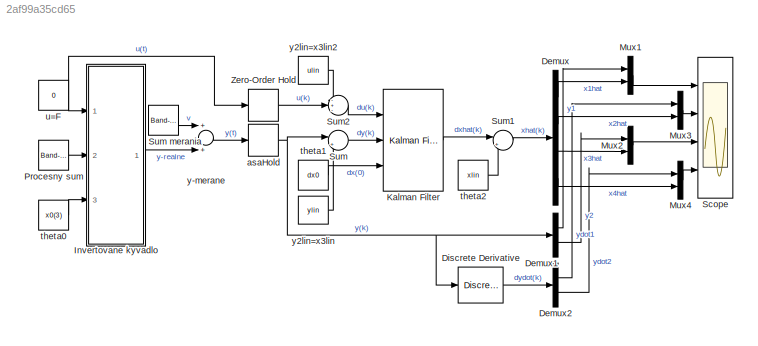
MODEL slx_2af99a35cd65
KIND model
CONFIG AbsTol = auto
CONFIG EnableMultiTasking = on
CONFIG FixedStep = Ts
CONFIG MaxStep = 0.01
CONFIG MinStep = auto
CONFIG RelTol = 1e-3
CONFIG SampleTimeConstraint = Unconstrained
CONFIG Solver = ode4
CONFIG SolverName = ode4
CONFIG StartTime = 0.0
CONFIG StopTime = 10.0
BLOCK [Scope]  Scope
  NumInputPorts = 4
  Ports = [4]
  ScopeSpecificationString = Simulink.scopes.TimeScopeBlockCfg('CurrentConfiguration', extmgr.ConfigurationSet(extmgr.Configuration('Core','General UI',true,'FigureColor',[1 1 1]),extmgr.Configuration('Core','Source UI',true),extmgr.Configuration('Sources','WiredSimulink',true,'DataLoggingSaveFormat','Structure','DataLoggingDecimation','1','DataLoggingDecimateData',true,'DataLogging',true),extmgr.Configuration('Visuals','Time...<+6573ch>
BLOCK [Sum]  y-merane 
  InputSameDT = off
  OutDataTypeStr = Inherit: Inherit via internal rule
  Ports = [2, 1]
  SaturateOnIntegerOverflow = off
BLOCK [Demux] Demux
  DisplayOption = bar
  Ports = [1, 4]
BLOCK [Demux] Demux1
  DisplayOption = bar
  Outputs = 2
  Ports = [1, 2]
BLOCK [Demux] Demux2
  DisplayOption = bar
  Outputs = 2
  Ports = [1, 2]
BLOCK [Reference] Discrete Derivative  REF=simulink/Discrete/Discrete Derivative
  Ports = [1, 1]
  SourceBlock = simulink/Discrete/Discrete Derivative
  SourceProductBaseCode = SL
  SourceProductName = Simulink
  SourceType = Discrete Derivative
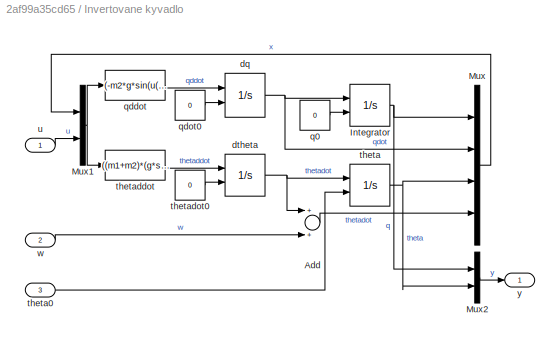
BLOCK [SubSystem] Invertovane kyvadlo
  Ports = [3, 1]
  RequestExecContextInheritance = off
  Variant = off
BLOCK [Sum] Invertovane kyvadlo/Add
  InputSameDT = off
  OutDataTypeStr = Inherit: Inherit via internal rule
  Ports = [2, 1]
  SaturateOnIntegerOverflow = off
BLOCK [Integrator] Invertovane kyvadlo/Integrator
  InitialConditionSource = external
  Ports = [2, 1]
BLOCK [Mux] Invertovane kyvadlo/Mux
  DisplayOption = bar
  Ports = [4, 1]
BLOCK [Mux] Invertovane kyvadlo/Mux1
  DisplayOption = bar
  Inputs = 2
  Ports = [2, 1]
BLOCK [Mux] Invertovane kyvadlo/Mux2
  DisplayOption = bar
  Inputs = 2
  Ports = [2, 1]
BLOCK [Integrator] Invertovane kyvadlo/dq
  InitialConditionSource = external
  Ports = [2, 1]
BLOCK [Integrator] Invertovane kyvadlo/dtheta
  InitialConditionSource = external
  Ports = [2, 1]
BLOCK [Constant] Invertovane kyvadlo/q0
  Value = 0
BLOCK [Fcn] Invertovane kyvadlo/qddot
  Expr = (-m2*g*sin(u(3))*cos(u(3))+m2*l*((u(4))^2)*sin(u(3))+b*m2*u(4)*cos(u(3))+u(5))/(m1+(1-(cos(u(3)))^2)*m2)
BLOCK [Constant] Invertovane kyvadlo/qdot0
  Value = 0
BLOCK [Integrator] Invertovane kyvadlo/theta
  InitialConditionSource = external
  Ports = [2, 1]
BLOCK [Inport] Invertovane kyvadlo/theta0
  IconDisplay = Port number
  Port = 3
BLOCK [Fcn] Invertovane kyvadlo/thetaddot
  Expr = ((m1+m2)*(g*sin(u(3))-b*u(4))-(m2*l*((u(4))^2)*sin(u(3))+u(5))*cos(u(3)))/(l*(m1+(1-(cos(u(3)))^2)*m2))
BLOCK [Constant] Invertovane kyvadlo/thetadot0
  Value = 0
BLOCK [Inport] Invertovane kyvadlo/u
  IconDisplay = Port number
BLOCK [Inport] Invertovane kyvadlo/w
  IconDisplay = Port number
  Port = 2
BLOCK [Outport] Invertovane kyvadlo/y
  IconDisplay = Port number
BLOCK [Reference] Kalman Filter  REF=ctrlSharedLib/Kalman Filter
  Ports = [3, 1]
  SourceBlock = ctrlSharedLib/Kalman Filter
  SourceProductBaseCode = CT
  SourceProductName = Control System Toolbox
  SourceType = ctrlKalmanFilter
BLOCK [Mux] Mux1
  DisplayOption = bar
  Inputs = 2
  Ports = [2, 1]
BLOCK [Mux] Mux2
  DisplayOption = bar
  Inputs = 2
  Ports = [2, 1]
BLOCK [Mux] Mux3
  DisplayOption = bar
  Inputs = 2
  Ports = [2, 1]
BLOCK [Mux] Mux4
  DisplayOption = bar
  Inputs = 2
  Ports = [2, 1]
BLOCK [Reference] Procesny sum  REF=simulink/Sources/Band-Limited
White Noise
  Ports = [0, 1]
  SourceBlock = simulink/Sources/Band-Limited\nWhite Noise
  SourceProductBaseCode = SL
  SourceProductName = Simulink
  SourceType = Band-Limited White Noise.
BLOCK [Sum] Sum
  IconShape = round
  InputSameDT = off
  Inputs = |+-
  OutDataTypeStr = Inherit: Inherit via internal rule
  Ports = [2, 1]
  SaturateOnIntegerOverflow = off
BLOCK [Reference] Sum merania  REF=simulink/Sources/Band-Limited
White Noise
  Ports = [0, 1]
  SourceBlock = simulink/Sources/Band-Limited\nWhite Noise
  SourceProductBaseCode = SL
  SourceProductName = Simulink
  SourceType = Band-Limited White Noise.
BLOCK [Sum] Sum1
  IconShape = round
  InputSameDT = off
  Inputs = |++
  OutDataTypeStr = Inherit: Inherit via internal rule
  Ports = [2, 1]
  SaturateOnIntegerOverflow = off
BLOCK [Sum] Sum2
  IconShape = round
  InputSameDT = off
  Inputs = -+-
  OutDataTypeStr = Inherit: Inherit via internal rule
  Ports = [3, 1]
  SaturateOnIntegerOverflow = off
BLOCK [ZeroOrderHold] Zero-Order Hold
  SampleTime = Ts
BLOCK [ZeroOrderHold] asaHold
  SampleTime = Ts
BLOCK [Constant] theta0
  Value = x0(3)
BLOCK [Constant] theta1
  Value = dx0
BLOCK [Constant] theta2
  Value = xlin
BLOCK [Constant] u=F
  Value = 0
BLOCK [Constant] y2lin=x3lin
  Value = ylin
BLOCK [Constant] y2lin=x3lin2
  Value = ulin
LINE  y-merane :1 -> asaHold:1
LINE Demux1:1 -> Mux1:1
LINE Demux1:2 -> Mux2:1
LINE Demux2:1 -> Mux3:1
LINE Demux2:2 -> Mux4:1
LINE Demux:1 -> Mux1:2
LINE Demux:2 -> Mux3:2
LINE Demux:3 -> Mux2:2
LINE Demux:4 -> Mux4:2
LINE Discrete Derivative:1 -> Demux2:1
LINE Invertovane kyvadlo/Add:1 -> Invertovane kyvadlo/Mux:4
NET Invertovane kyvadlo/Integrator:1 -> Invertovane kyvadlo/Mux2:1, Invertovane kyvadlo/Mux:1
NET Invertovane kyvadlo/Mux1:1 -> Invertovane kyvadlo/qddot:1, Invertovane kyvadlo/thetaddot:1
LINE Invertovane kyvadlo/Mux2:1 -> Invertovane kyvadlo/y:1
LINE Invertovane kyvadlo/Mux:1 -> Invertovane kyvadlo/Mux1:1
NET Invertovane kyvadlo/dq:1 -> Invertovane kyvadlo/Integrator:1, Invertovane kyvadlo/Mux:2
NET Invertovane kyvadlo/dtheta:1 -> Invertovane kyvadlo/Add:1, Invertovane kyvadlo/theta:1
LINE Invertovane kyvadlo/q0:1 -> Invertovane kyvadlo/Integrator:2
LINE Invertovane kyvadlo/qddot:1 -> Invertovane kyvadlo/dq:1
LINE Invertovane kyvadlo/qdot0:1 -> Invertovane kyvadlo/dq:2
LINE Invertovane kyvadlo/theta0:1 -> Invertovane kyvadlo/theta:2
NET Invertovane kyvadlo/theta:1 -> Invertovane kyvadlo/Mux2:2, Invertovane kyvadlo/Mux:3
LINE Invertovane kyvadlo/thetaddot:1 -> Invertovane kyvadlo/dtheta:1
LINE Invertovane kyvadlo/thetadot0:1 -> Invertovane kyvadlo/dtheta:2
LINE Invertovane kyvadlo/u:1 -> Invertovane kyvadlo/Mux1:2
LINE Invertovane kyvadlo/w:1 -> Invertovane kyvadlo/Add:2
LINE Invertovane kyvadlo:1 ->  y-merane :2
LINE Kalman Filter:1 -> Sum1:1
LINE Mux1:1 ->  Scope:1
LINE Mux2:1 ->  Scope:3
LINE Mux3:1 ->  Scope:2
LINE Mux4:1 ->  Scope:4
LINE Procesny sum:1 -> Invertovane kyvadlo:2
LINE Sum merania:1 ->  y-merane :1
LINE Sum1:1 -> Demux:1
LINE Sum2:1 -> Kalman Filter:1
LINE Sum:1 -> Kalman Filter:2
LINE Zero-Order Hold:1 -> Sum2:2
NET asaHold:1 -> Demux1:1, Discrete Derivative:1, Sum:1
LINE theta0:1 -> Invertovane kyvadlo:3
LINE theta1:1 -> Kalman Filter:3
LINE theta2:1 -> Sum1:2
NET u=F:1 -> Invertovane kyvadlo:1, Zero-Order Hold:1
LINE y2lin=x3lin2:1 -> Sum2:1
LINE y2lin=x3lin:1 -> Sum:2
note: NET lines group one-source signal fan-out (src -> all destinations, sorted); 1:1 wires keep LINE
